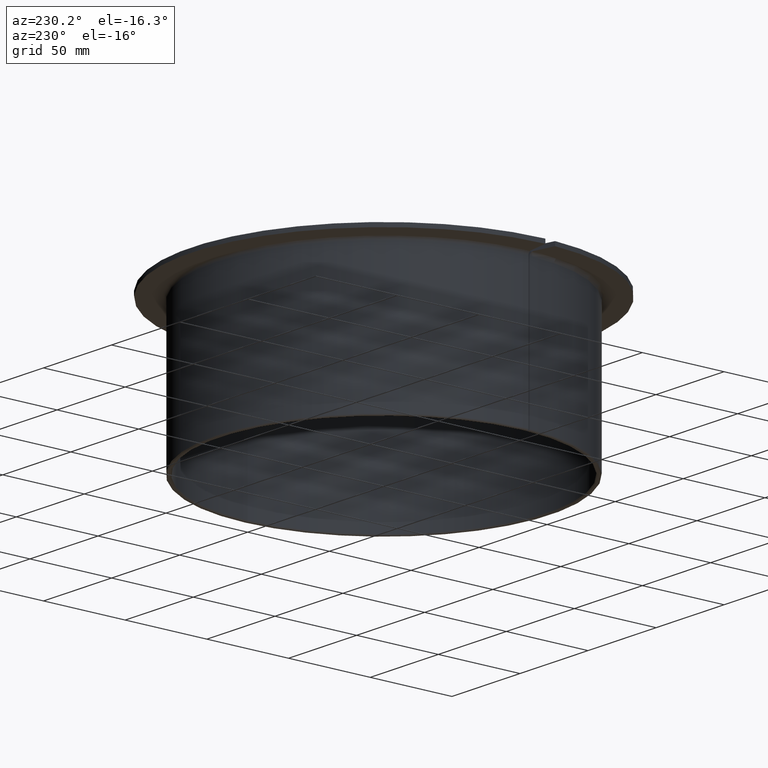
[diagram: clean part render]
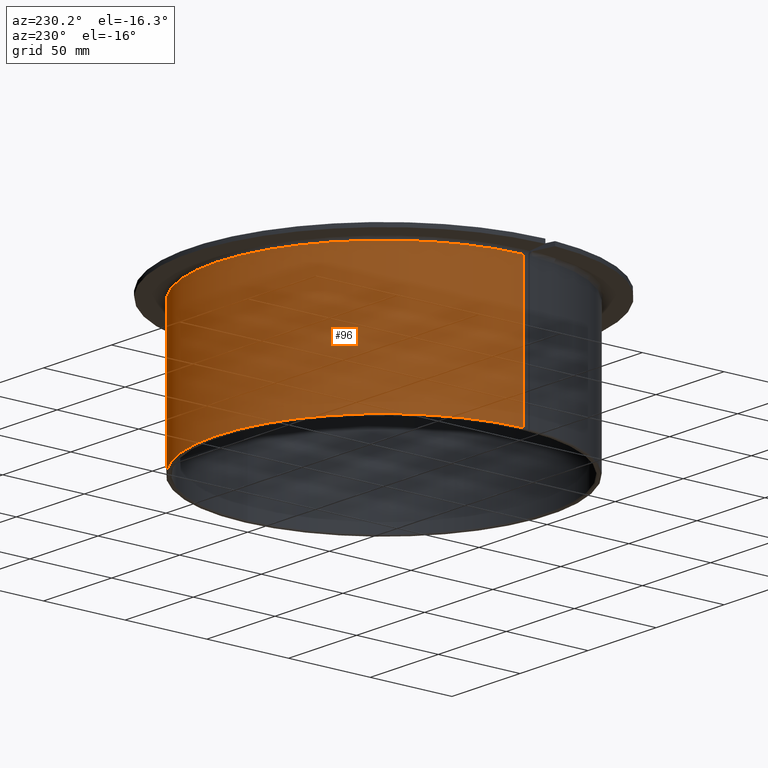
[diagram: same view with one face highlighted and labeled with its STEP entity id]
A machine part, auxiliary view. The second image highlights one B-rep face of the part: STEP entity #96.
In plain terms, the highlighted cylindrical surface (partial cylindrical patch) has radius 102.5 mm, axis along (-0, -0, 1).
Its self-contained STEP definition (entity closure, byte-faithful):
#96=ADVANCED_FACE('',(#144),#145,.T.);
#144=FACE_OUTER_BOUND('',#196,.T.);
#145=CYLINDRICAL_SURFACE('',#197,102.5);
#196=EDGE_LOOP('',(#367,#368,#369,#370));
#197=AXIS2_PLACEMENT_3D('',#371,#372,#373);
#367=ORIENTED_EDGE('',*,*,#430,.T.);
#368=ORIENTED_EDGE('',*,*,#437,.F.);
#369=ORIENTED_EDGE('',*,*,#427,.T.);
#370=ORIENTED_EDGE('',*,*,#472,.T.);
#371=CARTESIAN_POINT('',(-2.8295281413662E-030,-1.49014960731379E-015,43.0));
#372=DIRECTION('',(-1.16269284789061E-031,-6.12323399573677E-017,1.0));
#373=DIRECTION('',(-1.0,1.87715863181855E-015,-1.32646929163974E-033));
#427=EDGE_CURVE('',#505,#489,#506,.T.);
#430=EDGE_CURVE('',#498,#510,#511,.T.);
#437=EDGE_CURVE('',#505,#510,#522,.T.);
#472=EDGE_CURVE('',#489,#498,#574,.T.);
#489=VERTEX_POINT('',#595);
#498=VERTEX_POINT('',#607);
#505=VERTEX_POINT('',#617);
#506=LINE('',#618,#619);
#510=VERTEX_POINT('',#624);
#511=LINE('',#625,#626);
#522=CIRCLE('',#651,102.5);
#574=CIRCLE('',#773,102.5);
#595=CARTESIAN_POINT('',(102.5,-2.03849164611788E-013,0.500000000000007));
#607=CARTESIAN_POINT('',(-102.5,2.06073614293536E-013,0.500000000000007));
#617=CARTESIAN_POINT('',(102.5,-2.1089243107761E-013,85.5));
#618=CARTESIAN_POINT('',(102.5,-2.06451539059976E-013,43.0));
#619=VECTOR('',#806,1.0);
#624=CARTESIAN_POINT('',(-102.5,2.03471239764482E-013,85.5));
#625=CARTESIAN_POINT('',(-102.5,2.03471239845348E-013,43.0));
#626=VECTOR('',#811,1.0);
#651=AXIS2_PLACEMENT_3D('',#825,#826,#827);
#773=AXIS2_PLACEMENT_3D('',#892,#893,#894);
#806=DIRECTION('',(1.16269284789061E-031,6.12323399573677E-017,-1.0));
#811=DIRECTION('',(-1.16269284789061E-031,-6.12323399573677E-017,1.0));
#825=CARTESIAN_POINT('',(-7.04575888216064E-030,-3.7105956565641E-015,85.5));
#826=DIRECTION('',(-1.16269284789061E-031,-6.12323399573677E-017,1.0));
#827=DIRECTION('',(-1.0,1.87715863181855E-015,-1.32646929163974E-033));
#892=CARTESIAN_POINT('',(1.38670259942823E-030,7.30296441936522E-016,0.500000000000006));
#893=DIRECTION('',(-1.16269284789061E-031,-6.12323399573677E-017,1.0));
#894=DIRECTION('',(-1.0,1.87715863181855E-015,-1.32646929163974E-033));